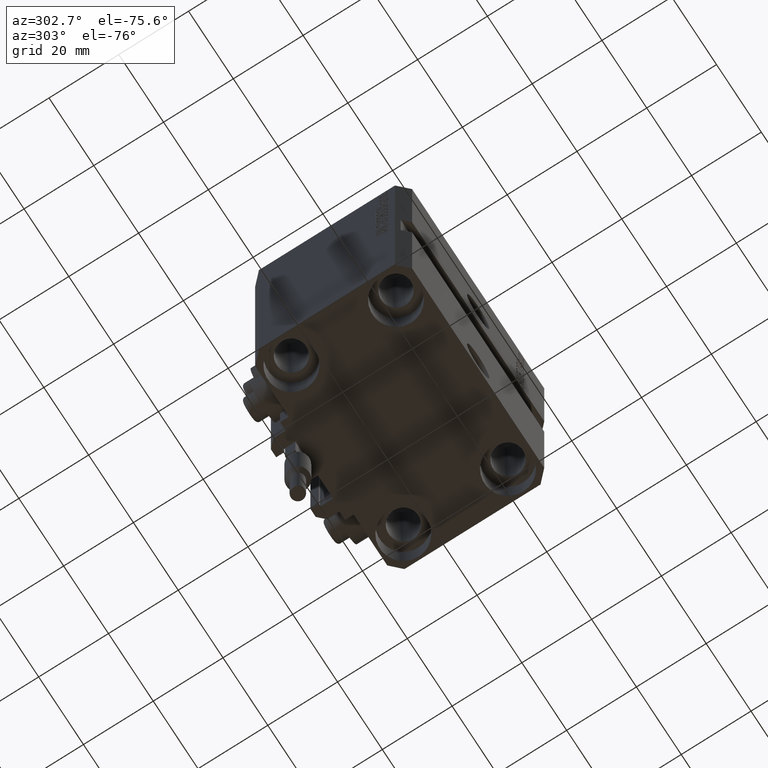
[diagram: clean part render]
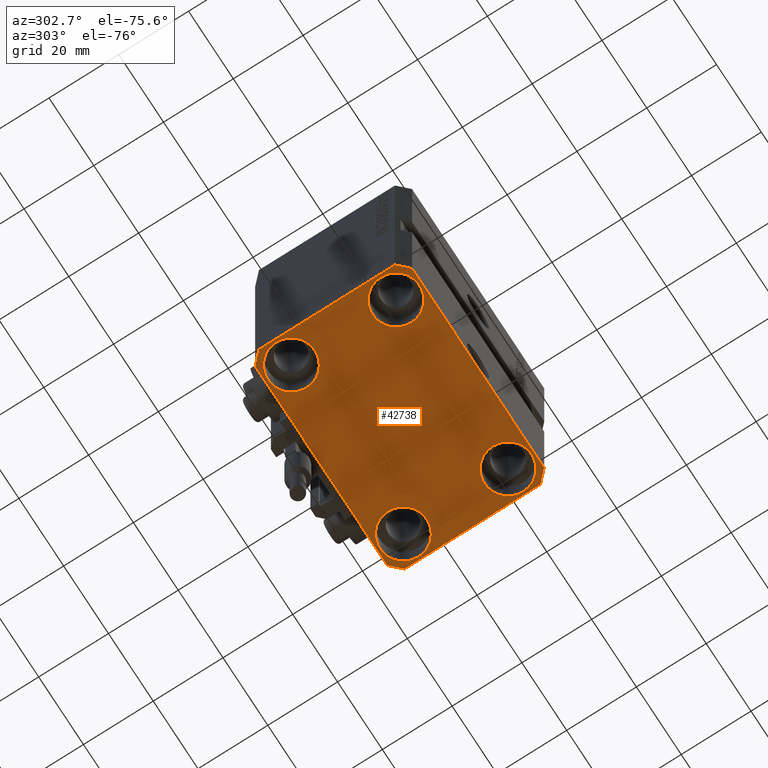
[diagram: same view with one face highlighted and labeled with its STEP entity id]
A machine part, auxiliary view. The second image highlights one B-rep face of the part: STEP entity #42738.
In plain terms, the highlighted planar face has unit normal (0, 0, 1).
Its self-contained STEP definition (entity closure, byte-faithful):
#223 = LINE ( 'NONE', #12257, #24688 ) ;
#374 = VERTEX_POINT ( 'NONE', #44704 ) ;
#442 = DIRECTION ( 'NONE',  ( 1.334402673828349134E-14, 1.000000000000000000, 0.000000000000000000 ) ) ;
#478 = VECTOR ( 'NONE', #3052, 1000.000000000000000 ) ;
#1019 = EDGE_LOOP ( 'NONE', ( #17220, #8072 ) ) ;
#1826 = CARTESIAN_POINT ( 'NONE',  ( 32.49999999999651124, -19.49999999999949196, -77.00000000000000000 ) ) ;
#1890 = EDGE_CURVE ( 'NONE', #34497, #42680, #14108, .T. ) ;
#2093 = DIRECTION ( 'NONE',  ( -0.000000000000000000, -0.000000000000000000, 1.000000000000000000 ) ) ;
#2675 = VECTOR ( 'NONE', #6215, 1000.000000000000000 ) ;
#2915 = AXIS2_PLACEMENT_3D ( 'NONE', #35400, #12340, #12605 ) ;
#3052 = DIRECTION ( 'NONE',  ( 0.000000000000000000, -1.000000000000000000, 0.000000000000000000 ) ) ;
#3396 = DIRECTION ( 'NONE',  ( -0.000000000000000000, -0.000000000000000000, 1.000000000000000000 ) ) ;
#3940 = DIRECTION ( 'NONE',  ( 1.000000000000000000, 0.000000000000000000, 0.000000000000000000 ) ) ;
#3998 = ORIENTED_EDGE ( 'NONE', *, *, #35762, .T. ) ;
#4157 = EDGE_CURVE ( 'NONE', #12079, #40291, #18076, .T. ) ;
#4664 = EDGE_CURVE ( 'NONE', #31759, #34664, #223, .T. ) ;
#5023 = AXIS2_PLACEMENT_3D ( 'NONE', #18069, #2093, #33620 ) ;
#5051 = CARTESIAN_POINT ( 'NONE',  ( -31.75000000002253842, 15.00000000000000000, -77.00000000000000000 ) ) ;
#5088 = DIRECTION ( 'NONE',  ( 1.000000000000000000, 0.000000000000000000, 0.000000000000000000 ) ) ;
#5188 = EDGE_LOOP ( 'NONE', ( #15571, #3998 ) ) ;
#5221 = CIRCLE ( 'NONE', #20401, 6.750000000022533087 ) ;
#6215 = DIRECTION ( 'NONE',  ( -1.000000000000000000, -2.352167425053553784E-16, 0.000000000000000000 ) ) ;
#6353 = EDGE_CURVE ( 'NONE', #38711, #31759, #27767, .T. ) ;
#6561 = CARTESIAN_POINT ( 'NONE',  ( -29.49999999999650413, 22.49999999999949907, -77.00000000000000000 ) ) ;
#6582 = EDGE_CURVE ( 'NONE', #25688, #38711, #27084, .T. ) ;
#6694 = DIRECTION ( 'NONE',  ( 1.000000000000000000, 1.176083712526788232E-16, 0.000000000000000000 ) ) ;
#7704 = CARTESIAN_POINT ( 'NONE',  ( 25.00000000000000355, -15.00000000000000000, -77.00000000000000000 ) ) ;
#8072 = ORIENTED_EDGE ( 'NONE', *, *, #29441, .T. ) ;
#8238 = CIRCLE ( 'NONE', #5023, 6.750000000022533087 ) ;
#9199 = CIRCLE ( 'NONE', #21979, 6.749999999977465137 ) ;
#10267 = PLANE ( 'NONE',  #35427 ) ;
#12079 = VERTEX_POINT ( 'NONE', #32947 ) ;
#12257 = CARTESIAN_POINT ( 'NONE',  ( 32.49999999999702993, 19.49999999999945999, -77.00000000000000000 ) ) ;
#12340 = DIRECTION ( 'NONE',  ( -0.000000000000000000, -0.000000000000000000, 1.000000000000000000 ) ) ;
#12605 = DIRECTION ( 'NONE',  ( 1.000000000000000000, 0.000000000000000000, 0.000000000000000000 ) ) ;
#12983 = VERTEX_POINT ( 'NONE', #17572 ) ;
#13531 = CARTESIAN_POINT ( 'NONE',  ( -25.00000000000000355, 15.00000000000000000, -77.00000000000000000 ) ) ;
#13564 = VECTOR ( 'NONE', #442, 1000.000000000000000 ) ;
#13722 = CARTESIAN_POINT ( 'NONE',  ( -32.49999999999650413, -19.49999999999949907, -77.00000000000000000 ) ) ;
#14108 = CIRCLE ( 'NONE', #2915, 6.749999999958452790 ) ;
#14410 = ORIENTED_EDGE ( 'NONE', *, *, #43092, .F. ) ;
#15490 = DIRECTION ( 'NONE',  ( -0.000000000000000000, -0.000000000000000000, 1.000000000000000000 ) ) ;
#15571 = ORIENTED_EDGE ( 'NONE', *, *, #19765, .T. ) ;
#16070 = CARTESIAN_POINT ( 'NONE',  ( 18.25000000004154543, 15.00000000000000888, -77.00000000000000000 ) ) ;
#16265 = ORIENTED_EDGE ( 'NONE', *, *, #4664, .F. ) ;
#16818 = DIRECTION ( 'NONE',  ( 0.000000000000000000, 0.000000000000000000, 1.000000000000000000 ) ) ;
#17074 = ORIENTED_EDGE ( 'NONE', *, *, #1890, .T. ) ;
#17220 = ORIENTED_EDGE ( 'NONE', *, *, #48000, .T. ) ;
#17326 = VERTEX_POINT ( 'NONE', #47916 ) ;
#17506 = DIRECTION ( 'NONE',  ( 1.000000000000000000, 0.000000000000000000, 0.000000000000000000 ) ) ;
#17572 = CARTESIAN_POINT ( 'NONE',  ( -31.75000000004154899, -15.00000000000000000, -77.00000000000000000 ) ) ;
#17770 = FACE_BOUND ( 'NONE', #1019, .T. ) ;
#18069 = CARTESIAN_POINT ( 'NONE',  ( -25.00000000000000355, 15.00000000000000000, -77.00000000000000000 ) ) ;
#18076 = LINE ( 'NONE', #29870, #478 ) ;
#18710 = VERTEX_POINT ( 'NONE', #35266 ) ;
#18942 = CARTESIAN_POINT ( 'NONE',  ( 29.49999999999707967, 22.49999999999951328, -77.00000000000000000 ) ) ;
#19438 = AXIS2_PLACEMENT_3D ( 'NONE', #37995, #34248, #37745 ) ;
#19580 = AXIS2_PLACEMENT_3D ( 'NONE', #31157, #46419, #5088 ) ;
#19712 = DIRECTION ( 'NONE',  ( -0.000000000000000000, -0.000000000000000000, 1.000000000000000000 ) ) ;
#19765 = EDGE_CURVE ( 'NONE', #18710, #42329, #31152, .T. ) ;
#20401 = AXIS2_PLACEMENT_3D ( 'NONE', #13531, #32087, #17506 ) ;
#21189 = CARTESIAN_POINT ( 'NONE',  ( 31.74999999997746869, -15.00000000000000000, -77.00000000000000000 ) ) ;
#21530 = ORIENTED_EDGE ( 'NONE', *, *, #4157, .F. ) ;
#21832 = DIRECTION ( 'NONE',  ( -0.7071067811865474617, -0.7071067811865474617, 0.000000000000000000 ) ) ;
#21979 = AXIS2_PLACEMENT_3D ( 'NONE', #34539, #15490, #42313 ) ;
#22004 = EDGE_LOOP ( 'NONE', ( #17074, #35902 ) ) ;
#22314 = VECTOR ( 'NONE', #38355, 1000.000000000000000 ) ;
#22321 = LINE ( 'NONE', #6561, #28206 ) ;
#24688 = VECTOR ( 'NONE', #27555, 1000.000000000000000 ) ;
#25561 = CARTESIAN_POINT ( 'NONE',  ( 0.000000000000000000, 0.000000000000000000, -77.00000000000000000 ) ) ;
#25688 = VERTEX_POINT ( 'NONE', #28923 ) ;
#26439 = CARTESIAN_POINT ( 'NONE',  ( 24.99999999999999645, 15.00000000000000888, -77.00000000000000000 ) ) ;
#26660 = AXIS2_PLACEMENT_3D ( 'NONE', #26439, #3396, #37718 ) ;
#27084 = LINE ( 'NONE', #42115, #22314 ) ;
#27370 = VERTEX_POINT ( 'NONE', #44987 ) ;
#27486 = CIRCLE ( 'NONE', #26660, 6.749999999958452790 ) ;
#27555 = DIRECTION ( 'NONE',  ( -0.7071067811865352493, 0.7071067811865597852, 0.000000000000000000 ) ) ;
#27767 = LINE ( 'NONE', #42276, #13564 ) ;
#28084 = ORIENTED_EDGE ( 'NONE', *, *, #38584, .T. ) ;
#28206 = VECTOR ( 'NONE', #21832, 1000.000000000000114 ) ;
#28923 = CARTESIAN_POINT ( 'NONE',  ( 29.49999999999650413, -22.49999999999949196, -77.00000000000000000 ) ) ;
#29441 = EDGE_CURVE ( 'NONE', #17326, #48973, #5221, .T. ) ;
#29866 = VECTOR ( 'NONE', #40937, 1000.000000000000114 ) ;
#29870 = CARTESIAN_POINT ( 'NONE',  ( -32.49999999999650413, 19.49999999999949907, -77.00000000000000000 ) ) ;
#30244 = CARTESIAN_POINT ( 'NONE',  ( -29.49999999999650413, -22.49999999999949907, -77.00000000000000000 ) ) ;
#31152 = CIRCLE ( 'NONE', #48832, 6.749999999977465137 ) ;
#31157 = CARTESIAN_POINT ( 'NONE',  ( -25.00000000000000355, -15.00000000000000000, -77.00000000000000000 ) ) ;
#31759 = VERTEX_POINT ( 'NONE', #49385 ) ;
#32087 = DIRECTION ( 'NONE',  ( -0.000000000000000000, -0.000000000000000000, 1.000000000000000000 ) ) ;
#32618 = FACE_BOUND ( 'NONE', #22004, .T. ) ;
#32947 = CARTESIAN_POINT ( 'NONE',  ( -32.49999999999650413, 19.49999999999949907, -77.00000000000000000 ) ) ;
#33620 = DIRECTION ( 'NONE',  ( 1.000000000000000000, 0.000000000000000000, 0.000000000000000000 ) ) ;
#33871 = CIRCLE ( 'NONE', #19438, 6.750000000041541881 ) ;
#34248 = DIRECTION ( 'NONE',  ( -0.000000000000000000, -0.000000000000000000, 1.000000000000000000 ) ) ;
#34408 = ORIENTED_EDGE ( 'NONE', *, *, #49042, .T. ) ;
#34497 = VERTEX_POINT ( 'NONE', #16070 ) ;
#34539 = CARTESIAN_POINT ( 'NONE',  ( 25.00000000000000355, -15.00000000000000000, -77.00000000000000000 ) ) ;
#34664 = VERTEX_POINT ( 'NONE', #18942 ) ;
#34887 = ORIENTED_EDGE ( 'NONE', *, *, #44088, .F. ) ;
#35259 = CARTESIAN_POINT ( 'NONE',  ( -18.24999999995845812, -15.00000000000000000, -77.00000000000000000 ) ) ;
#35266 = CARTESIAN_POINT ( 'NONE',  ( 18.25000000002253842, -15.00000000000000000, -77.00000000000000000 ) ) ;
#35400 = CARTESIAN_POINT ( 'NONE',  ( 24.99999999999999645, 15.00000000000000888, -77.00000000000000000 ) ) ;
#35427 = AXIS2_PLACEMENT_3D ( 'NONE', #25561, #16818, #40848 ) ;
#35717 = CIRCLE ( 'NONE', #19580, 6.750000000041541881 ) ;
#35762 = EDGE_CURVE ( 'NONE', #42329, #18710, #9199, .T. ) ;
#35902 = ORIENTED_EDGE ( 'NONE', *, *, #44189, .T. ) ;
#36365 = CARTESIAN_POINT ( 'NONE',  ( 31.74999999995845101, 15.00000000000000888, -77.00000000000000000 ) ) ;
#36905 = VERTEX_POINT ( 'NONE', #35259 ) ;
#37474 = CARTESIAN_POINT ( 'NONE',  ( 29.49999999999707967, 22.49999999999951328, -77.00000000000000000 ) ) ;
#37718 = DIRECTION ( 'NONE',  ( 1.000000000000000000, 0.000000000000000000, 0.000000000000000000 ) ) ;
#37745 = DIRECTION ( 'NONE',  ( 1.000000000000000000, 0.000000000000000000, 0.000000000000000000 ) ) ;
#37995 = CARTESIAN_POINT ( 'NONE',  ( -25.00000000000000355, -15.00000000000000000, -77.00000000000000000 ) ) ;
#38355 = DIRECTION ( 'NONE',  ( 0.7071067811865483499, 0.7071067811865466846, 0.000000000000000000 ) ) ;
#38584 = EDGE_CURVE ( 'NONE', #12983, #36905, #35717, .T. ) ;
#38654 = ORIENTED_EDGE ( 'NONE', *, *, #6582, .F. ) ;
#38711 = VERTEX_POINT ( 'NONE', #1826 ) ;
#40291 = VERTEX_POINT ( 'NONE', #13722 ) ;
#40848 = DIRECTION ( 'NONE',  ( 1.000000000000000000, 0.000000000000000000, -0.000000000000000000 ) ) ;
#40937 = DIRECTION ( 'NONE',  ( 0.7071067811865474617, -0.7071067811865474617, 0.000000000000000000 ) ) ;
#41022 = LINE ( 'NONE', #30244, #42594 ) ;
#41246 = LINE ( 'NONE', #37474, #2675 ) ;
#41628 = EDGE_CURVE ( 'NONE', #27370, #12079, #22321, .T. ) ;
#42115 = CARTESIAN_POINT ( 'NONE',  ( 29.49999999999650413, -22.49999999999949196, -77.00000000000000000 ) ) ;
#42276 = CARTESIAN_POINT ( 'NONE',  ( 32.49999999999651124, -19.49999999999949196, -77.00000000000000000 ) ) ;
#42313 = DIRECTION ( 'NONE',  ( 1.000000000000000000, 0.000000000000000000, 0.000000000000000000 ) ) ;
#42329 = VERTEX_POINT ( 'NONE', #21189 ) ;
#42594 = VECTOR ( 'NONE', #6694, 1000.000000000000000 ) ;
#42680 = VERTEX_POINT ( 'NONE', #36365 ) ;
#42738 = ADVANCED_FACE ( 'NONE', ( #48368, #43630, #32618, #17770, #44600 ), #10267, .F. ) ;
#43092 = EDGE_CURVE ( 'NONE', #374, #25688, #41022, .T. ) ;
#43303 = ORIENTED_EDGE ( 'NONE', *, *, #41628, .F. ) ;
#43630 = FACE_BOUND ( 'NONE', #5188, .T. ) ;
#43980 = LINE ( 'NONE', #44929, #29866 ) ;
#44088 = EDGE_CURVE ( 'NONE', #34664, #27370, #41246, .T. ) ;
#44189 = EDGE_CURVE ( 'NONE', #42680, #34497, #27486, .T. ) ;
#44236 = EDGE_LOOP ( 'NONE', ( #34887, #16265, #47746, #38654, #14410, #46782, #21530, #43303 ) ) ;
#44306 = EDGE_CURVE ( 'NONE', #40291, #374, #43980, .T. ) ;
#44600 = FACE_OUTER_BOUND ( 'NONE', #44236, .T. ) ;
#44704 = CARTESIAN_POINT ( 'NONE',  ( -29.49999999999650413, -22.49999999999949907, -77.00000000000000000 ) ) ;
#44929 = CARTESIAN_POINT ( 'NONE',  ( -32.49999999999650413, -19.49999999999949907, -77.00000000000000000 ) ) ;
#44987 = CARTESIAN_POINT ( 'NONE',  ( -29.49999999999650413, 22.49999999999949907, -77.00000000000000000 ) ) ;
#46419 = DIRECTION ( 'NONE',  ( -0.000000000000000000, -0.000000000000000000, 1.000000000000000000 ) ) ;
#46782 = ORIENTED_EDGE ( 'NONE', *, *, #44306, .F. ) ;
#47746 = ORIENTED_EDGE ( 'NONE', *, *, #6353, .F. ) ;
#47916 = CARTESIAN_POINT ( 'NONE',  ( -18.24999999997747224, 15.00000000000000000, -77.00000000000000000 ) ) ;
#48000 = EDGE_CURVE ( 'NONE', #48973, #17326, #8238, .T. ) ;
#48368 = FACE_BOUND ( 'NONE', #48424, .T. ) ;
#48424 = EDGE_LOOP ( 'NONE', ( #28084, #34408 ) ) ;
#48832 = AXIS2_PLACEMENT_3D ( 'NONE', #7704, #19712, #3940 ) ;
#48973 = VERTEX_POINT ( 'NONE', #5051 ) ;
#49042 = EDGE_CURVE ( 'NONE', #36905, #12983, #33871, .T. ) ;
#49385 = CARTESIAN_POINT ( 'NONE',  ( 32.49999999999702993, 19.49999999999945999, -77.00000000000000000 ) ) ;